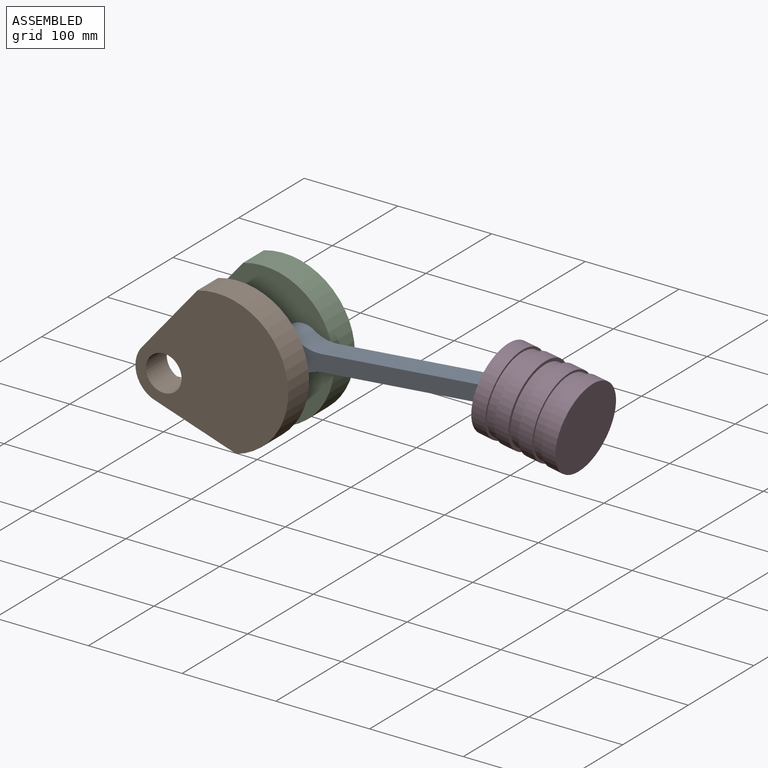
[diagram: assembled view]
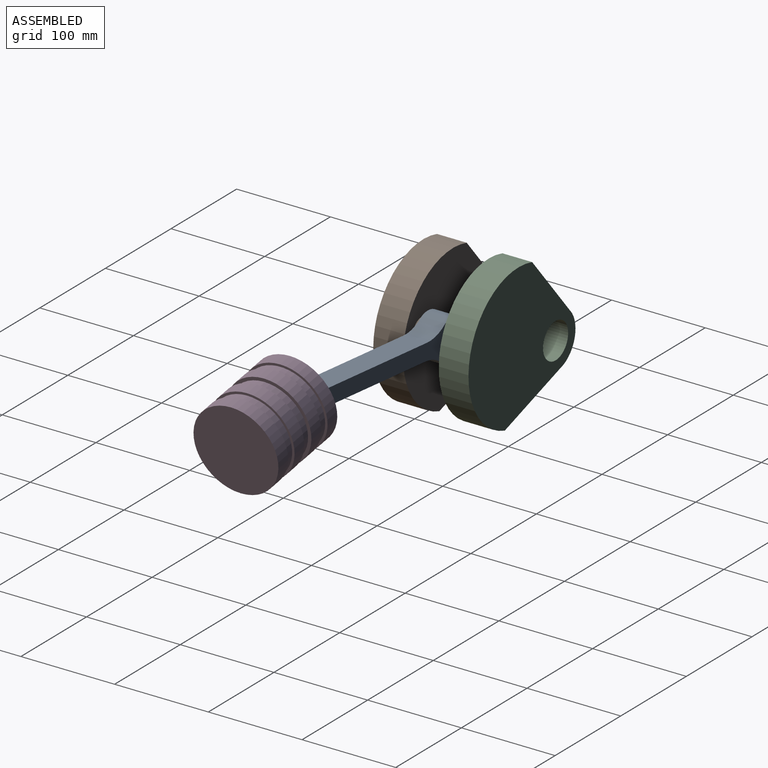
[diagram: assembled view, second angle]
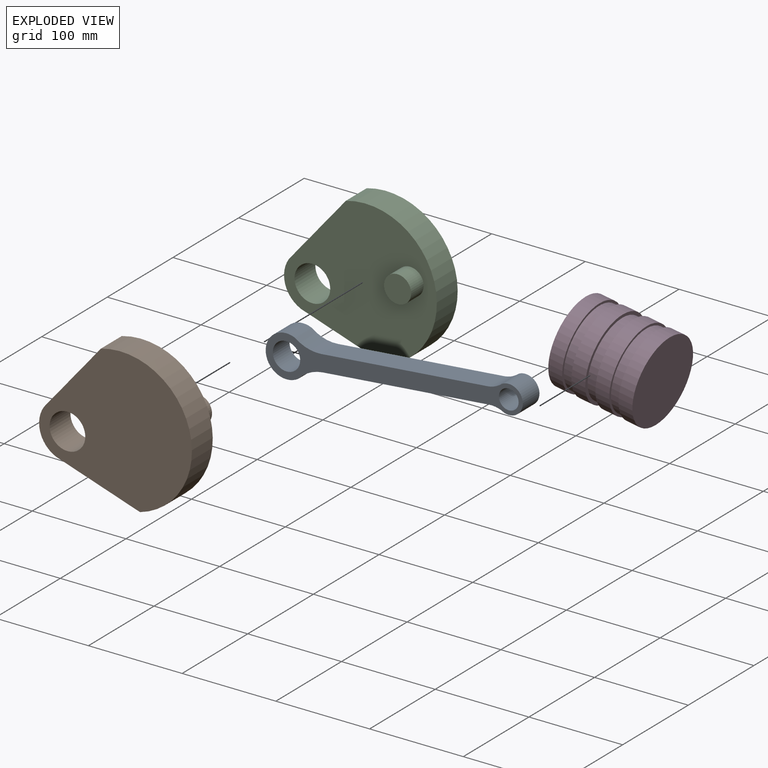
[diagram: exploded view]
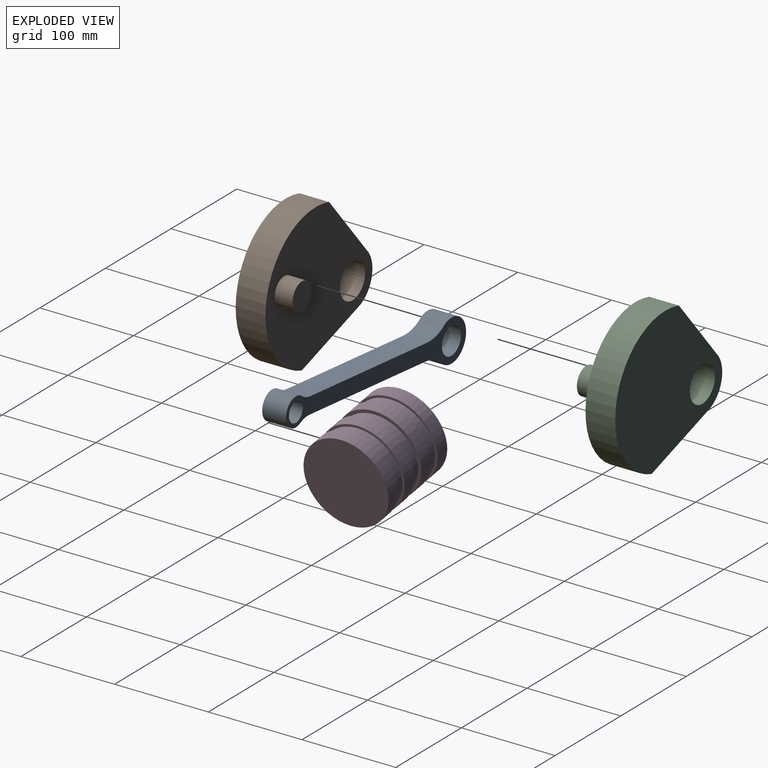
[diagram: exploded view, second angle]
ASSEMBLY  parts=4 mates=3
PART A: 12 faces, bbox 44.5x25.4x275.4 mm
  f0: cylinder r=22.23mm len=44.45mm, axis (0,1,0), area 2363mm2, adj f1,f7,f10,f11
  f1: cylinder r=40.11mm len=27.11mm, axis (0,1,0), area 756.2mm2, adj f0,f2,f10,f11
  f2: plane 177.8x25.4mm, normal (1,0,0), area 4516.1mm2, adj f1,f3,f10,f11
  f3: cylinder r=27.48mm len=25.4mm, axis (0,1,0), area 435.8mm2, adj f2,f4,f10,f11
  f4: cylinder r=15mm len=30mm, axis (0,1,0), area 1513.4mm2, adj f3,f5,f10,f11
  f5: cylinder r=27.48mm len=25.4mm, axis (0,1,0), area 435.8mm2, adj f4,f6,f10,f11
  f6: plane 177.8x25.4mm, normal (-1,0,0), area 4516.1mm2, adj f5,f7,f10,f11
  f7: cylinder r=40.11mm len=27.11mm, axis (0,1,0), area 756.2mm2, adj f0,f6,f10,f11
  f8: cylinder r=14.61mm len=29.21mm, axis (0,1,0), area 2330.9mm2, adj f10,f11
  f9: cylinder r=10.5mm len=25.4mm, axis (0,1,0), area 1675.7mm2, adj f10,f11
  f10: plane 275.39x44.45mm, normal (0,-1,0), area 4842mm2, adj f0,f1,f2,f3,f4,f5,f6,f7
  f11: plane 275.39x44.45mm, normal (0,1,0), area 4842mm2, adj f0,f1,f2,f3,f4,f5,f6,f7
PART B: 9 faces, bbox 152.4x50.8x165.3 mm
  f0: plane 78.1x52.87mm, normal (-0.83,0,0.56), area 2994.4mm2, adj f1,f3,f4,f5
  f1: cylinder r=76.2mm len=152.4mm, axis (0,1,0), area 7600.6mm2, adj f0,f2,f4,f5
  f2: plane 78.1x52.87mm, normal (0.83,0,0.56), area 2994.4mm2, adj f1,f3,f4,f5
  f3: cylinder r=30.23mm len=46.66mm, axis (0,1,0), area 1692.3mm2, adj f0,f2,f4,f5
  f4: plane 165.3x152.4mm, normal (0,-1,0), area 16110.9mm2, adj f0,f1,f2,f3,f8
  f5: plane 165.3x152.4mm, normal (0,1,0), area 15452.4mm2, adj f0,f1,f2,f3,f6,f8
  f6: cylinder r=14.48mm len=28.96mm, axis (0,-1,0), area 1732.9mm2, adj f5,f7
  f7: plane 28.96x28.96mm, normal (0,1,0), area 658.5mm2, adj f6
  f8: cylinder r=19.05mm len=38.1mm, axis (0,1,0), area 3800.3mm2, adj f4,f5
PART C: same geometry as B
PART D: 21 faces, bbox 90x91x90 mm
  f0: plane 90x90mm, normal (0,-1,0), area 4961.7mm2, adj f9,f11,f12,f13,f14
  f1: cylinder r=45mm len=90mm, axis (0,1,0), area 4241.2mm2, adj f2,f3
  f2: plane 90x90mm, normal (0,-1,0), area 951.1mm2, adj f1,f4
  f3: plane 90x90mm, normal (0,1,0), area 687.2mm2, adj f1,f17
  f4: cylinder r=41.5mm len=83mm, axis (0,1,0), area 2868.3mm2, adj f2,f7
  f5: cylinder r=45mm len=90mm, axis (0,1,0), area 4241.2mm2, adj f6,f7
  f6: plane 90x90mm, normal (0,-1,0), area 687.2mm2, adj f5,f8
  f7: plane 90x90mm, normal (0,1,0), area 951.1mm2, adj f4,f5
  f8: cylinder r=42.5mm len=85mm, axis (0,1,0), area 2670.4mm2, adj f6,f10
  f9: cylinder r=45mm len=90mm, axis (0,1,0), area 4241.2mm2, adj f0,f10
  f10: plane 90x90mm, normal (0,1,0), area 687.2mm2, adj f8,f9
  f11: plane 35x31.75mm, normal (0,0,-1), area 1111.2mm2, adj f0,f12,f14,f15
  f12: plane 40x31.75mm, normal (1,0,0), area 955.8mm2, adj f0,f11,f13,f15,f16
  f13: plane 35x31.75mm, normal (0,0,1), area 1111.2mm2, adj f0,f12,f14,f15
  f14: plane 40x31.75mm, normal (-1,0,0), area 955.8mm2, adj f0,f11,f13,f15,f16
  f15: plane 40x35mm, normal (0,-1,0), area 1400mm2, adj f11,f12,f13,f14
  f16: cylinder r=10mm len=35mm, axis (-1,0,0), area 2199.1mm2, adj f12,f14
  f17: cylinder r=42.5mm len=85mm, axis (0,-1,0), area 2670.4mm2, adj f3,f20
  f18: cylinder r=45mm len=90mm, axis (0,-1,0), area 4241.2mm2, adj f19,f20
  f19: plane 90x90mm, normal (0,1,0), area 6361.7mm2, adj f18
  f20: plane 90x90mm, normal (0,-1,0), area 687.2mm2, adj f17,f18
PLACE A rot(axis=(-0.67,0,-0.74),180deg) t=(51.58,24.09,-234.46)mm
PLACE B rot(axis=(0,-1,0),105.9deg) t=(-159.94,17.74,-249.02)mm fixed
PLACE C rot(axis=(-0.8,0,0.6),180deg) t=(-159.94,55.84,-249.02)mm
PLACE D rot(axis=(-0.08,0.08,-0.99),90.4deg) t=(100.12,36.79,-242.79)mm
MATE revolute A.f8 <-> C.f6  axis (0,-1,0) through (-185.59,36.79,-256.31)mm
MATE fastened C.f6 <-> B.f6  axis (0,-1,0) through (-185.59,36.79,-256.31)mm
MATE revolute A.f4 <-> D.f16  axis (0,-1,0) through (51.58,36.79,-234.46)mm
